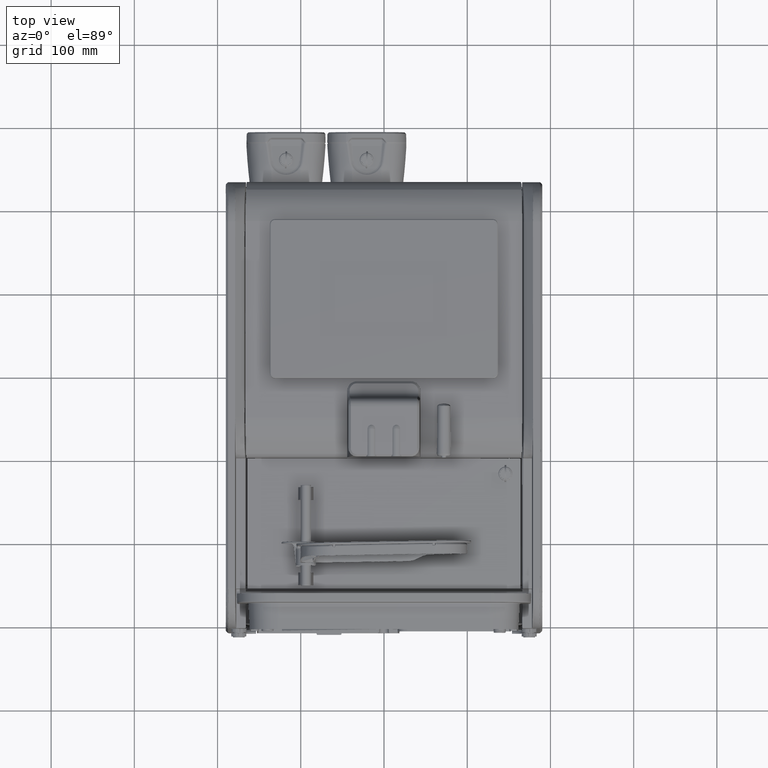
[diagram: clean part render]
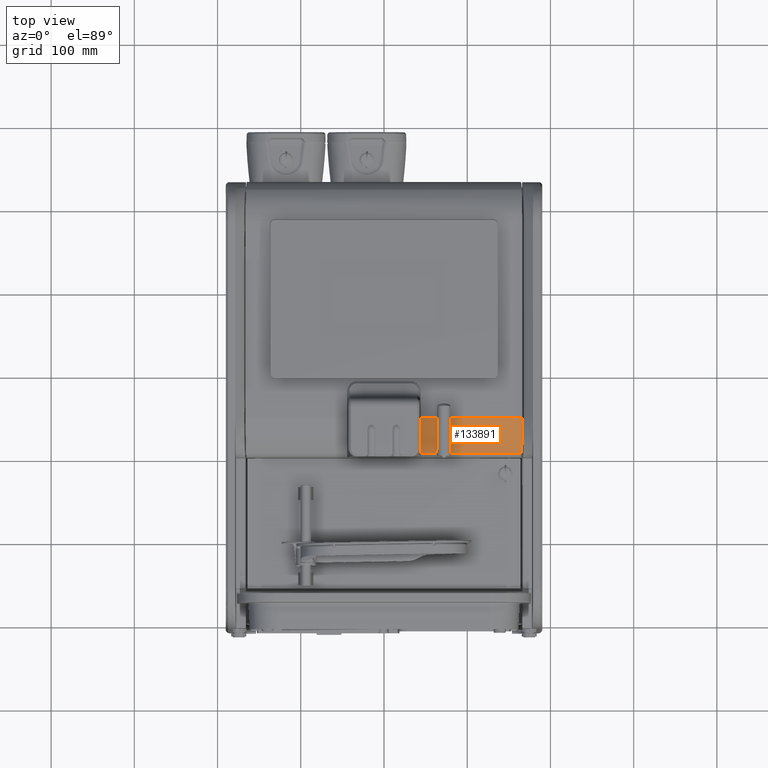
[diagram: same view with one face highlighted and labeled with its STEP entity id]
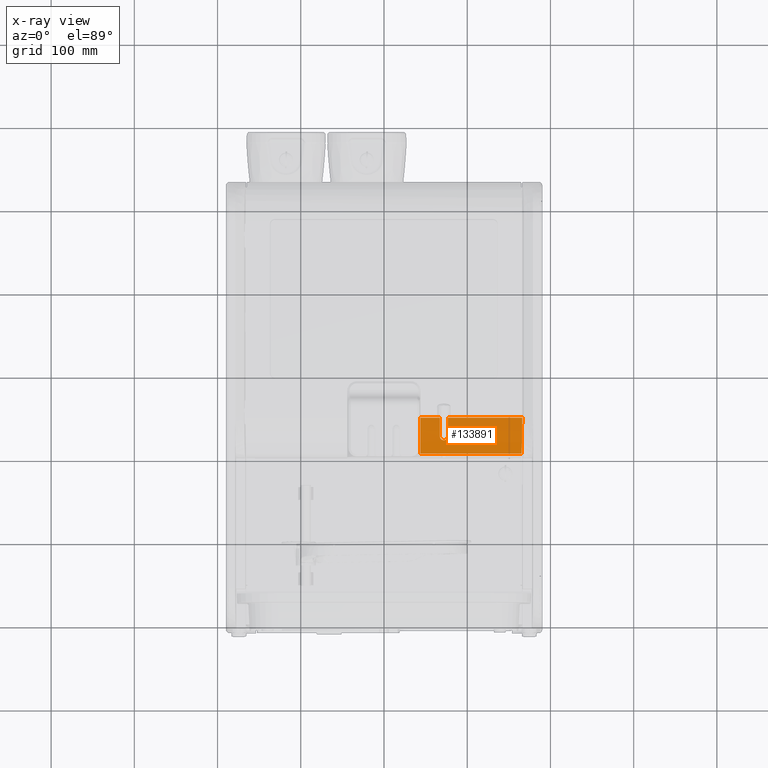
[diagram: x-ray of the same camera — body ghosted, the highlighted face saturated]
A machine part, top view. The second image highlights one B-rep face of the part: STEP entity #133891.
The next image is the same camera in x-ray: the body ghosted, the highlighted face saturated — about 0% of this face is hidden behind the body in this view.
In plain terms, the highlighted cylindrical surface (partial cylindrical patch) has radius 66 mm, axis along (-1, 0, 0).
Its self-contained STEP definition (entity closure, byte-faithful):
#6164=B_SPLINE_CURVE_WITH_KNOTS('',3,(#290201,#290202,#290203,#290204,#290205,
#290206,#290207,#290208,#290209,#290210,#290211,#290212,#290213,#290214,
#290215,#290216,#290217,#290218,#290219,#290220,#290221),.UNSPECIFIED.,
 .F.,.F.,(4,1,1,1,1,1,1,1,1,1,1,1,1,1,1,1,1,1,4),(-0.743680600486452,-0.531297445639471,
-0.425105868215981,-0.318914290792491,-0.10653113594551,-0.0534353472337654,
-0.000339558522020278,0.10585201890147,0.158947807613215,0.21204359632496,
0.265139385036705,0.291687279392578,0.304961226570514,0.311598200159482,
0.314916686953966,0.31823517374845,0.424426751171941,0.530618328595431,
0.743001483442411),.UNSPECIFIED.);
#9424=CYLINDRICAL_SURFACE('',#143854,66.);
#19352=CIRCLE('',#143855,66.);
#19353=CIRCLE('',#143856,66.000014939288);
#19354=CIRCLE('',#143857,66.000014939288);
#21975=ELLIPSE('',#143853,66.0628772207791,66.);
#27106=FACE_OUTER_BOUND('',#33443,.T.);
#33443=EDGE_LOOP('',(#118874,#118875,#118876,#118877,#118878,#118879,#118880,
#118881));
#42734=LINE('',#290264,#52759);
#42739=LINE('',#290304,#52764);
#42740=LINE('',#290308,#52765);
#52759=VECTOR('',#170695,10.);
#52764=VECTOR('',#170716,10.);
#52765=VECTOR('',#170721,10.);
#66794=VERTEX_POINT('',#290199);
#66795=VERTEX_POINT('',#290200);
#66802=VERTEX_POINT('',#290257);
#66805=VERTEX_POINT('',#290262);
#66810=VERTEX_POINT('',#290296);
#66811=VERTEX_POINT('',#290301);
#66812=VERTEX_POINT('',#290303);
#66813=VERTEX_POINT('',#290306);
#87386=EDGE_CURVE('',#66794,#66795,#6164,.T.);
#87397=EDGE_CURVE('',#66802,#66805,#42734,.T.);
#87404=EDGE_CURVE('',#66810,#66805,#21975,.T.);
#87407=EDGE_CURVE('',#66811,#66802,#19352,.T.);
#87408=EDGE_CURVE('',#66812,#66810,#42739,.T.);
#87409=EDGE_CURVE('',#66812,#66794,#19353,.T.);
#87410=EDGE_CURVE('',#66795,#66813,#19354,.T.);
#87411=EDGE_CURVE('',#66811,#66813,#42740,.T.);
#118874=ORIENTED_EDGE('',*,*,#87407,.T.);
#118875=ORIENTED_EDGE('',*,*,#87397,.T.);
#118876=ORIENTED_EDGE('',*,*,#87404,.F.);
#118877=ORIENTED_EDGE('',*,*,#87408,.F.);
#118878=ORIENTED_EDGE('',*,*,#87409,.T.);
#118879=ORIENTED_EDGE('',*,*,#87386,.T.);
#118880=ORIENTED_EDGE('',*,*,#87410,.T.);
#118881=ORIENTED_EDGE('',*,*,#87411,.F.);
#133891=ADVANCED_FACE('',(#27106),#9424,.T.);
#143853=AXIS2_PLACEMENT_3D('',#290297,#170708,#170709);
#143854=AXIS2_PLACEMENT_3D('',#290300,#170712,#170713);
#143855=AXIS2_PLACEMENT_3D('',#290302,#170714,#170715);
#143856=AXIS2_PLACEMENT_3D('',#290305,#170717,#170718);
#143857=AXIS2_PLACEMENT_3D('',#290307,#170719,#170720);
#170695=DIRECTION('',(1.,-5.63726486357343E-10,-1.3759885292662E-14));
#170708=DIRECTION('center_axis',(0.999048221581857,-5.63188198845716E-10,
-0.0436193873653508));
#170709=DIRECTION('ref_axis',(0.0436193873653507,-2.46293666539438E-11,
0.999048221581857));
#170712=DIRECTION('center_axis',(-1.,5.63726486357343E-10,1.3759885292662E-14));
#170713=DIRECTION('ref_axis',(1.37598852701125E-14,-4.00007492723122E-14,
1.));
#170714=DIRECTION('center_axis',(1.,-5.63726260281427E-10,-1.3759885292662E-14));
#170715=DIRECTION('ref_axis',(1.37598852701125E-14,-4.00007492723122E-14,
1.));
#170716=DIRECTION('',(1.,-5.63726486357343E-10,-1.3759885292662E-14));
#170717=DIRECTION('center_axis',(0.999999773647583,0.000672833399308446,
-1.37329683154214E-14));
#170718=DIRECTION('ref_axis',(-0.000672833399308446,0.999999773647583,4.00099983284262E-14));
#170719=DIRECTION('center_axis',(-0.999999773647583,-0.000672833399308446,
1.37329683154214E-14));
#170720=DIRECTION('ref_axis',(-0.000672833399308446,0.999999773647583,4.00099983284262E-14));
#170721=DIRECTION('',(1.,-5.63726486357343E-10,-1.3759885292662E-14));
#290199=CARTESIAN_POINT('',(76.6156085362435,222.603201075469,201.41328861732));
#290200=CARTESIAN_POINT('',(67.1156106865915,222.596809158175,201.410991911089));
#290201=CARTESIAN_POINT('Ctrl Pts',(76.6156085362436,222.603201075469,201.41328861732));
#290202=CARTESIAN_POINT('Ctrl Pts',(76.6160569282364,221.936777720483,201.173872203816));
#290203=CARTESIAN_POINT('Ctrl Pts',(76.3956512486538,220.870567934051,200.770396998208));
#290204=CARTESIAN_POINT('Ctrl Pts',(75.6373146269917,219.655504786169,200.275966255154));
#290205=CARTESIAN_POINT('Ctrl Pts',(74.6914837630084,218.671527993956,199.860446877031));
#290206=CARTESIAN_POINT('Ctrl Pts',(73.4999525239226,218.053598114152,199.585554479344));
#290207=CARTESIAN_POINT('Ctrl Pts',(72.4028501811345,217.869746006167,199.503017471942));
#290208=CARTESIAN_POINT('Ctrl Pts',(71.6924195403605,217.828066871505,199.484255931288));
#290209=CARTESIAN_POINT('Ctrl Pts',(70.9680376752526,217.909089680519,199.520771150115));
#290210=CARTESIAN_POINT('Ctrl Pts',(70.2523756286042,218.11989560605,199.614877401766));
#290211=CARTESIAN_POINT('Ctrl Pts',(69.7424803702506,218.338478437514,199.711588916202));
#290212=CARTESIAN_POINT('Ctrl Pts',(69.3447659473862,218.566546963774,199.811392686473));
#290213=CARTESIAN_POINT('Ctrl Pts',(69.0863400718586,218.745871392988,199.889040205064));
#290214=CARTESIAN_POINT('Ctrl Pts',(68.9623881750213,218.839787998775,199.929484835685));
#290215=CARTESIAN_POINT('Ctrl Pts',(68.9018252241027,218.887713281498,199.950065751449));
#290216=CARTESIAN_POINT('Ctrl Pts',(68.867606623634,218.915371152343,199.961926125697));
#290217=CARTESIAN_POINT('Ctrl Pts',(68.579334703577,219.151763116946,200.063204971402));
#290218=CARTESIAN_POINT('Ctrl Pts',(68.0973062816183,219.646689155122,200.272258567534));
#290219=CARTESIAN_POINT('Ctrl Pts',(67.3395777494151,220.864561861515,200.767940437348));
#290220=CARTESIAN_POINT('Ctrl Pts',(67.1160590573769,221.930417322814,201.171509389353));
#290221=CARTESIAN_POINT('Ctrl Pts',(67.1156106865916,222.596809158176,201.410991911089));
#290257=CARTESIAN_POINT('',(43.8999998518413,201.962961646671,189.408737864077));
#290262=CARTESIAN_POINT('',(165.379064654827,201.96296157819,189.408737864075));
#290264=CARTESIAN_POINT('',(-0.150000148158709,201.962961671503,189.408737864077));
#290296=CARTESIAN_POINT('',(166.072892167903,244.917756300496,205.299999999999));
#290297=CARTESIAN_POINT('Origin',(163.19126993594,244.917756302123,139.299999999999));
#290300=CARTESIAN_POINT('Origin',(-0.150000123944643,244.917756394203,139.300000000001));
#290301=CARTESIAN_POINT('',(43.8999998760563,244.917756369368,205.300000000001));
#290302=CARTESIAN_POINT('Origin',(43.8999998760554,244.917756369371,139.300000000001));
#290303=CARTESIAN_POINT('',(76.6005945547651,244.917756350934,205.3));
#290304=CARTESIAN_POINT('',(-0.150000123943735,244.9177563942,205.300000000001));
#290305=CARTESIAN_POINT('Origin',(76.6005945547642,244.917756350937,139.3));
#290306=CARTESIAN_POINT('',(67.1005924044131,244.91775635629,205.3));
#290307=CARTESIAN_POINT('Origin',(67.1005924044122,244.917756356292,139.3));
#290308=CARTESIAN_POINT('',(-0.150000123943735,244.9177563942,205.300000000001));